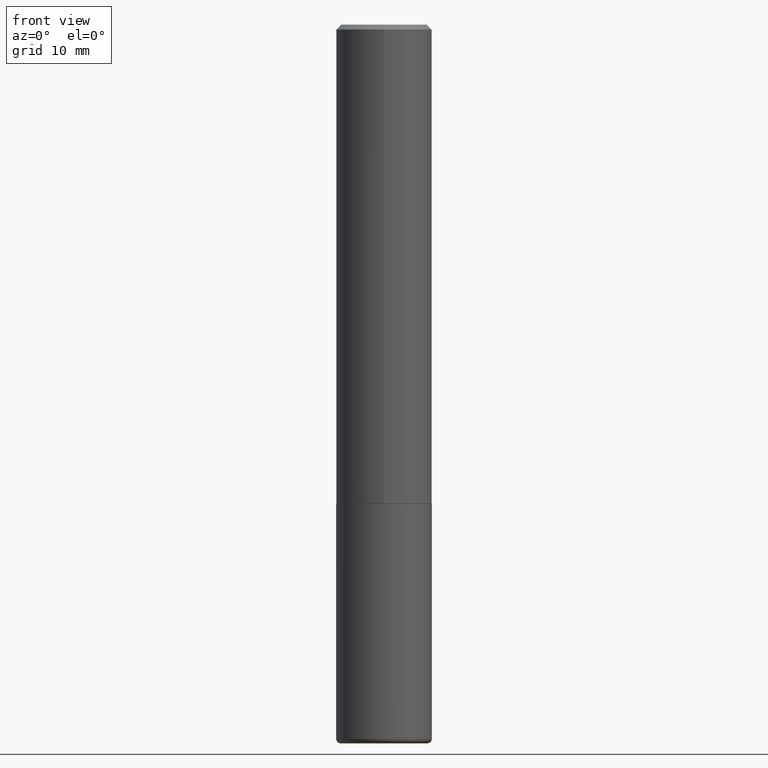
[diagram: clean part render]
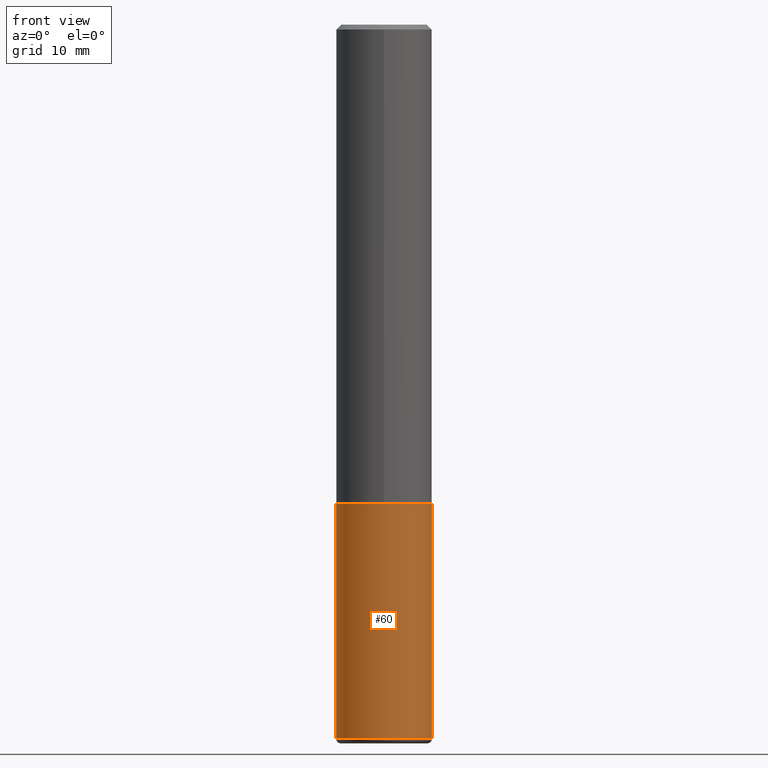
[diagram: same view with one face highlighted and labeled with its STEP entity id]
A machine part, front view. The second image highlights one B-rep face of the part: STEP entity #60.
In plain terms, the highlighted cylindrical surface (partial cylindrical patch) has radius 5 mm, axis along (-0, 0, 1).
Its self-contained STEP definition (entity closure, byte-faithful):
#22 = DIRECTION ( 'NONE',  ( 1.000000000000000000, -6.982962677686269866E-15, 0.000000000000000000 ) ) ;
#26 = CIRCLE ( 'NONE', #191, 0.1968499999999999694 ) ;
#31 = ORIENTED_EDGE ( 'NONE', *, *, #250, .T. ) ;
#37 = ORIENTED_EDGE ( 'NONE', *, *, #216, .T. ) ;
#47 = AXIS2_PLACEMENT_3D ( 'NONE', #406, #321, #125 ) ;
#50 = DIRECTION ( 'NONE',  ( -2.445468806185136877E-29, 3.491481338843145188E-15, 1.000000000000000000 ) ) ;
#58 = CARTESIAN_POINT ( 'NONE',  ( -0.1968500000000000250, -7.158219089893024104E-15, -1.968499999999999694 ) ) ;
#60 = ADVANCED_FACE ( 'NONE', ( #146 ), #218, .T. ) ;
#67 = CIRCLE ( 'NONE', #47, 0.1968500000000000250 ) ;
#78 = EDGE_CURVE ( 'NONE', #101, #393, #215, .T. ) ;
#84 = DIRECTION ( 'NONE',  ( 1.000000000000000000, -6.982962677686266711E-15, 4.876176775795935793E-29 ) ) ;
#85 = CARTESIAN_POINT ( 'NONE',  ( 7.172804555421624566E-29, -1.024086391496083050E-14, -2.933100000000000041 ) ) ;
#101 = VERTEX_POINT ( 'NONE', #370 ) ;
#112 = EDGE_LOOP ( 'NONE', ( #303, #37, #31, #114 ) ) ;
#113 = CARTESIAN_POINT ( 'NONE',  ( -0.1968499999999999694, 1.398703375343756999E-15, -9.682923725166782276E-30 ) ) ;
#114 = ORIENTED_EDGE ( 'NONE', *, *, #277, .F. ) ;
#122 = CARTESIAN_POINT ( 'NONE',  ( 0.1968499999999999694, -1.374596203102541411E-15, 9.598753983154298056E-30 ) ) ;
#125 = DIRECTION ( 'NONE',  ( 1.000000000000000000, -6.982962677686267499E-15, 0.000000000000000000 ) ) ;
#146 = FACE_OUTER_BOUND ( 'NONE', #112, .T. ) ;
#178 = CARTESIAN_POINT ( 'NONE',  ( 0.1968499999999999417, -1.161546011806337053E-14, -2.933100000000000041 ) ) ;
#185 = CARTESIAN_POINT ( 'NONE',  ( 0.000000000000000000, 0.000000000000000000, 0.000000000000000000 ) ) ;
#191 = AXIS2_PLACEMENT_3D ( 'NONE', #85, #310, #22 ) ;
#194 = DIRECTION ( 'NONE',  ( -2.445468806185136877E-29, 3.491481338843145188E-15, 1.000000000000000000 ) ) ;
#202 = VERTEX_POINT ( 'NONE', #178 ) ;
#207 = VERTEX_POINT ( 'NONE', #373 ) ;
#215 = LINE ( 'NONE', #113, #395 ) ;
#216 = EDGE_CURVE ( 'NONE', #101, #202, #26, .T. ) ;
#218 = CYLINDRICAL_SURFACE ( 'NONE', #322, 0.1968499999999999694 ) ;
#250 = EDGE_CURVE ( 'NONE', #202, #207, #327, .T. ) ;
#277 = EDGE_CURVE ( 'NONE', #393, #207, #67, .T. ) ;
#303 = ORIENTED_EDGE ( 'NONE', *, *, #78, .F. ) ;
#310 = DIRECTION ( 'NONE',  ( -2.445468806185136597E-29, 3.491481338843145583E-15, 1.000000000000000000 ) ) ;
#321 = DIRECTION ( 'NONE',  ( -2.445468806185136597E-29, 3.491481338843145583E-15, 1.000000000000000000 ) ) ;
#322 = AXIS2_PLACEMENT_3D ( 'NONE', #185, #338, #84 ) ;
#327 = LINE ( 'NONE', #122, #381 ) ;
#338 = DIRECTION ( 'NONE',  ( -2.445468806185136597E-29, 3.491481338843145583E-15, 1.000000000000000000 ) ) ;
#370 = CARTESIAN_POINT ( 'NONE',  ( -0.1968499999999999417, -8.842160539617071922E-15, -2.933100000000000041 ) ) ;
#373 = CARTESIAN_POINT ( 'NONE',  ( 0.1968500000000000250, -8.247577218615273316E-15, -1.968499999999999694 ) ) ;
#381 = VECTOR ( 'NONE', #194, 39.37007874015748143 ) ;
#393 = VERTEX_POINT ( 'NONE', #58 ) ;
#395 = VECTOR ( 'NONE', #50, 39.37007874015748143 ) ;
#406 = CARTESIAN_POINT ( 'NONE',  ( 4.813905344975440714E-29, -6.872981015512730918E-15, -1.968499999999999694 ) ) ;